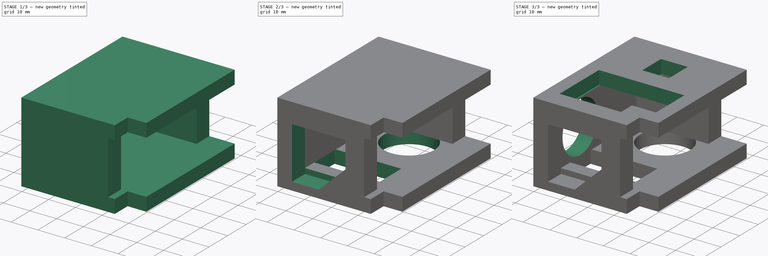
[diagram: build sequence overview — one tinted view per stage of 3, left to right]
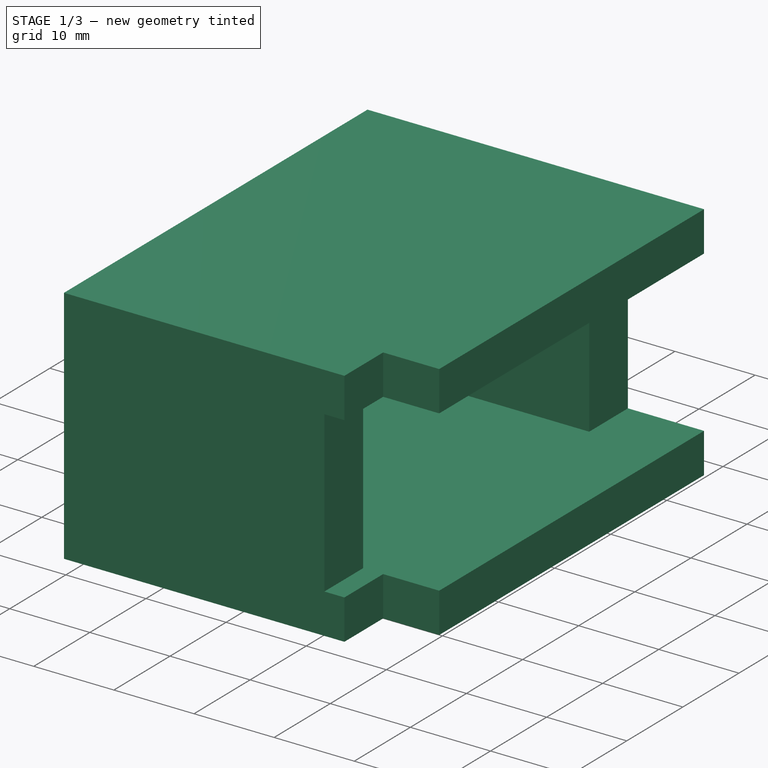
[diagram: stage 1 of 3 — iso view after this stage's code; geometry added in this stage tinted green]
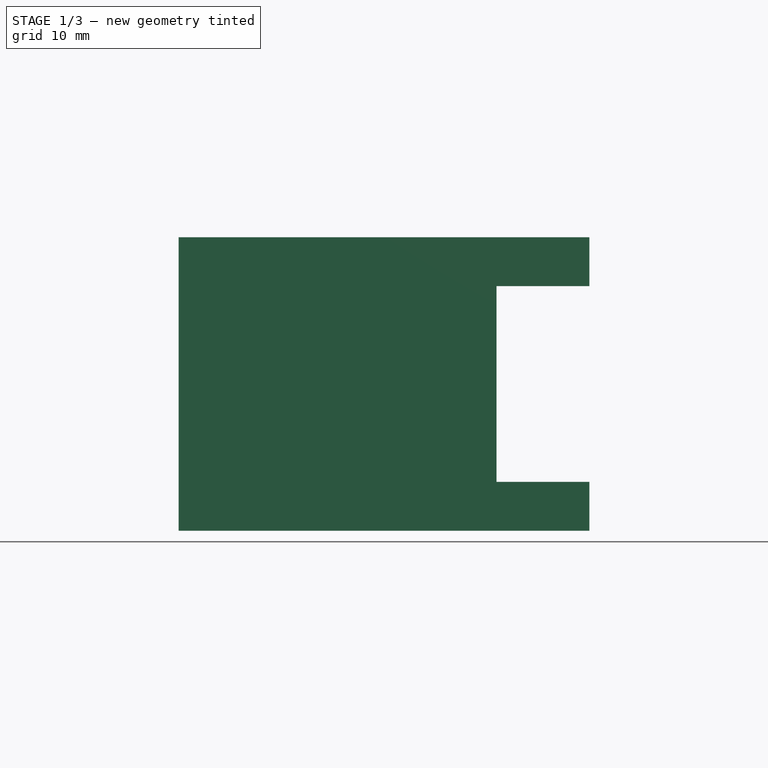
[diagram: stage 1 of 3 — front view after this stage's code; geometry added in this stage tinted green]
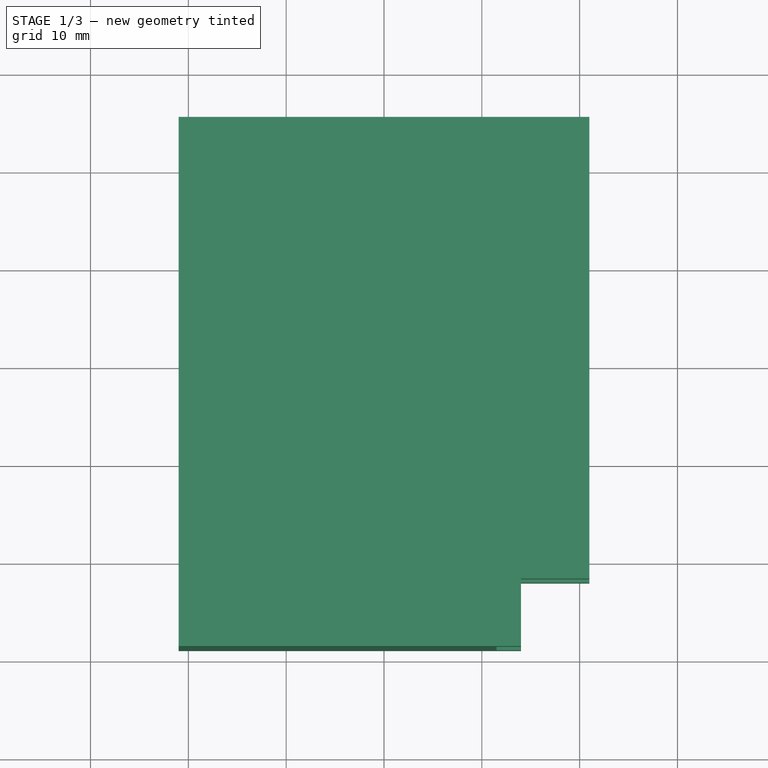
[diagram: stage 1 of 3 — top view after this stage's code; geometry added in this stage tinted green]
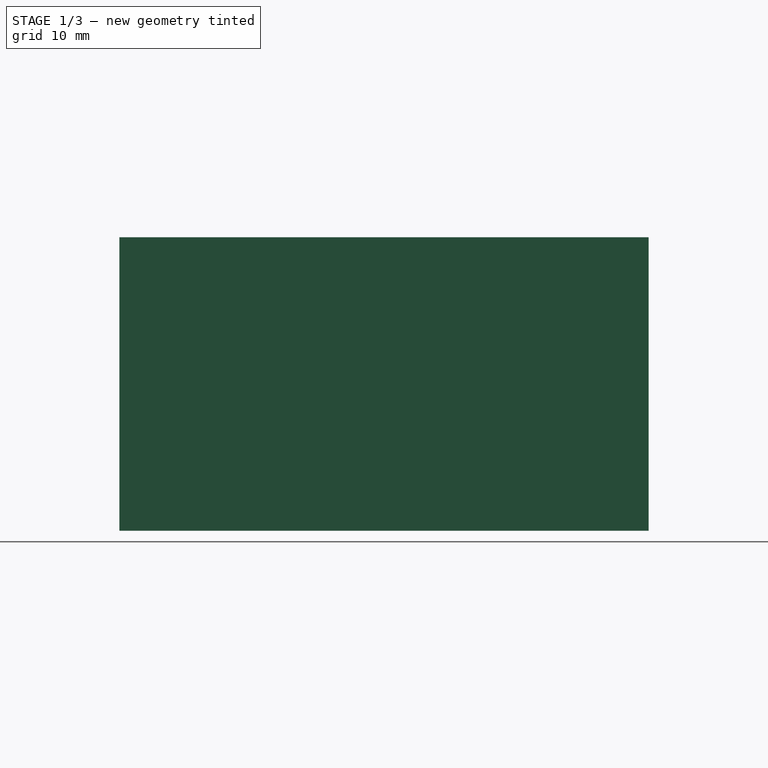
[diagram: stage 1 of 3 — right view after this stage's code; geometry added in this stage tinted green]
FCSTD DOCUMENT  (FreeCAD 0.20R29410 (Git))
Label: hip-male
License: All rights reserved
LicenseURL: http://en.wikipedia.org/wiki/All_rights_reserved
objects: Sketcher::SketchObject×7, PartDesign::Pocket×5, PartDesign::Pad×1, PartDesign::Body×1
note: 20 computed .brp shape members not serialized (recipe doc carries the construction recipe); baked Part::Feature solids carry a one-line shape summary decoded from their .brp

FEATURE [Sketcher::SketchObject] Sketch
  FullyConstrained = true
  MapMode = 5
  Support = -> [XY_Plane]
  sketch-geometry (7):
    g0: LineSegment StartX=-21 StartY=25.2 StartZ=0 EndX=-21 EndY=-28.9 EndZ=0
    g1: LineSegment StartX=-21 StartY=-28.9 StartZ=0 EndX=14 EndY=-28.9 EndZ=0
    g2: LineSegment StartX=14 StartY=-28.9 StartZ=0 EndX=14 EndY=-22 EndZ=0
    g3: LineSegment StartX=14 StartY=-22 StartZ=0 EndX=21 EndY=-22 EndZ=0
    g4: LineSegment StartX=21 StartY=-22 StartZ=0 EndX=21 EndY=25.2 EndZ=0
    g5: GeomPoint X=0 Y=-14.65 Z=0
    g6: LineSegment StartX=-21 StartY=25.2 StartZ=0 EndX=21 EndY=25.2 EndZ=0
  constraints (20):
    c: Vertical(g0)
    c: Coincident(g0,g1)
    c: Horizontal(g1)
    c: Coincident(g1,g2)
    c: Coincident(g2,g3)
    c: Horizontal(g3)
    c: Coincident(g3,g4)
    c: DistanceX(g1,g1) = 35
    c: DistanceX(g3,g3) = 7
    c: Perpendicular(g-1,g2)
    c: DistanceY(g4,g4) = 47.2
    c: DistanceY(g2,g2) = 6.9
    c: DistanceX(g0,g4) = 42
    c: DistanceY(g0,g5) = 14.25
    c: DistanceX(g0,g5) = 21
    c: DistanceY(g3,g-1) = 22
    c: DistanceX(g5,g-1) = 0
    c: Coincident(g0,g6)
    c: Coincident(g6,g4)
    c: Horizontal(g6)
FEATURE [PartDesign::Pad] Pad  label="MainPad"
  Direction = (0,0,1)
  Length = 30
  Length2 = 10
  Profile = -> Sketch
  ReferenceAxis = -> Sketch [N_Axis]
  Type = 0
FEATURE [Sketcher::SketchObject] Sketch001
  AttachmentOffset = pos=(0,0,5) rot=(0,0,1;0rad)
  FullyConstrained = false
  MapMode = 5
  Placement = pos=(0,0,5) rot=(0,0,1;0rad)
  Support = -> [XY_Plane]
  sketch-geometry (18):
    g0: LineSegment StartX=-15.5 StartY=18.3 StartZ=0 EndX=-15.5 EndY=-22 EndZ=0
    g1: LineSegment StartX=-15.5 StartY=-22 StartZ=0 EndX=11.5 EndY=-22 EndZ=0
    g2: LineSegment StartX=11.5 StartY=-22 StartZ=0 EndX=11.5 EndY=-28.9 EndZ=0
    g3: LineSegment StartX=11.5 StartY=-28.9 StartZ=0 EndX=14 EndY=-28.9 EndZ=0
    g4: LineSegment StartX=14 StartY=-28.9 StartZ=0 EndX=14 EndY=-22 EndZ=0
    g5: LineSegment StartX=14 StartY=-22 StartZ=0 EndX=21 EndY=-22 EndZ=0
    g6: LineSegment StartX=21 StartY=-22 StartZ=0 EndX=21 EndY=-18 EndZ=0
    g7: LineSegment StartX=21 StartY=-18 StartZ=0 EndX=27.5 EndY=-18 EndZ=0
    g8: LineSegment StartX=27.5 StartY=-18 StartZ=0 EndX=27.5 EndY=-12 EndZ=0
    g9: LineSegment StartX=27.5 StartY=-12 StartZ=0 EndX=21 EndY=-12 EndZ=0
    g10: LineSegment StartX=21 StartY=-12 StartZ=0 EndX=21 EndY=12.2 EndZ=0
    g11: LineSegment StartX=21 StartY=12.2 StartZ=0 EndX=21 EndY=12.2 EndZ=0
    g12: LineSegment StartX=21 StartY=12.2 StartZ=0 EndX=21 EndY=18.2 EndZ=0
    g13: LineSegment StartX=21 StartY=18.2 StartZ=0 EndX=21 EndY=18.2 EndZ=0
    g14: LineSegment StartX=21 StartY=18.2 StartZ=0 EndX=21 EndY=25.2 EndZ=0
    g15: LineSegment StartX=21 StartY=25.2 StartZ=0 EndX=11.5 EndY=25.2 EndZ=0
    g16: LineSegment StartX=11.5 StartY=25.2 StartZ=0 EndX=11.5 EndY=18.3 EndZ=0
    g17: LineSegment StartX=11.5 StartY=18.3 StartZ=0 EndX=-15.5 EndY=18.3 EndZ=0
  constraints (53):
    c: Coincident(g0,g1)
    c: Coincident(g1,g2)
    c: Coincident(g2,g3)
    c: Coincident(g3,g4)
    c: Coincident(g4,g5)
    c: Horizontal(g5)
    c: Coincident(g5,g6)
    c: Vertical(g6)
    c: Coincident(g6,g7)
    c: Horizontal(g7)
    c: Coincident(g7,g8)
    c: Coincident(g8,g9)
    c: Horizontal(g9)
    c: Coincident(g9,g10)
    c: Vertical(g10)
    c: Coincident(g10,g11)
    c: Horizontal(g11)
    c: Coincident(g11,g12)
    c: Coincident(g12,g13)
    c: Horizontal(g13)
    c: Coincident(g13,g14)
    c: Coincident(g14,g15)
    c: Coincident(g15,g16)
    c: Vertical(g16)
    c: Coincident(g16,g17)
    c: Coincident(g17,g0)
    c: Perpendicular(g-1,g0)
    c: Perpendicular(g-2,g1)
    c: Perpendicular(g-1,g2)
    c: Perpendicular(g-1,g4)
    c: Perpendicular(g-2,g3)
    c: Perpendicular(g-2,g15)
    c: Perpendicular(g-2,g17)
    c: Perpendicular(g-1,g12)
    c: Perpendicular(g-1,g8)
    c: DistanceY(g0,g0) = 40.3
    c: DistanceY(g2,g2) = 6.9
    c: DistanceX(g3,g3) = 2.5
    c: DistanceX(g5,g5) = 7
    c: DistanceX(g1,g1) = 27
    c: DistanceY(g4,g4) = 6.9
    c: DistanceX(g15,g15) = 9.5
    c: DistanceX(g17,g17) = 27
    c: DistanceY(g14,g14) = 7
    c: DistanceX(g9,g9) = 6.5
    c: DistanceX(g7,g7) = 6.5
    c: DistanceY(g8,g8) = 6
    c: DistanceY(g12,g12) = 6
    c: DistanceY(g6,g6) = 4
    c: DistanceX(g-1,g5) = 21
    c: DistanceX(g13,g14) = 0
    c: DistanceX(g12,g13) = 0
    c: DistanceY(g5,g-1) = 22
FEATURE [Sketcher::SketchObject] Sketch002  label="ServoSketch"
  FullyConstrained = false
  MapMode = 5
  Support = -> [XY_Plane]
  sketch-geometry (18):
    g0: LineSegment StartX=-11.7659 StartY=18.631 StartZ=0 EndX=-11.7659 EndY=-21.669 EndZ=0
    g1: LineSegment StartX=-11.7659 StartY=-21.669 StartZ=0 EndX=15.2341 EndY=-21.669 EndZ=0
    g2: LineSegment StartX=15.2341 StartY=-21.669 StartZ=0 EndX=15.2341 EndY=-28.519 EndZ=0
    g3: LineSegment StartX=15.2341 StartY=-28.519 StartZ=0 EndX=17.7341 EndY=-28.519 EndZ=0
    g4: LineSegment StartX=17.7341 StartY=-28.519 StartZ=0 EndX=17.7341 EndY=-21.669 EndZ=0
    g5: LineSegment StartX=17.7341 StartY=-21.669 StartZ=0 EndX=24.7341 EndY=-21.669 EndZ=0
    g6: LineSegment StartX=24.7341 StartY=-21.669 StartZ=0 EndX=24.7341 EndY=-17.669 EndZ=0
    g7: LineSegment StartX=24.7341 StartY=-17.669 StartZ=0 EndX=31.2341 EndY=-17.669 EndZ=0
    g8: LineSegment StartX=31.2341 StartY=-17.669 StartZ=0 EndX=31.2341 EndY=-11.669 EndZ=0
    g9: LineSegment StartX=31.2341 StartY=-11.669 StartZ=0 EndX=24.7341 EndY=-11.669 EndZ=0
    g10: LineSegment StartX=24.7341 StartY=-11.669 StartZ=0 EndX=24.7341 EndY=12.631 EndZ=0
    g11: LineSegment StartX=24.7341 StartY=12.631 StartZ=0 EndX=22.7341 EndY=12.631 EndZ=0
    g12: LineSegment StartX=22.7341 StartY=12.631 StartZ=0 EndX=22.7341 EndY=18.631 EndZ=0
    g13: LineSegment StartX=22.7341 StartY=18.631 StartZ=0 EndX=17.7341 EndY=18.631 EndZ=0
    g14: LineSegment StartX=17.7341 StartY=18.631 StartZ=0 EndX=17.7341 EndY=25.481 EndZ=0
    g15: LineSegment StartX=17.7341 StartY=25.481 StartZ=0 EndX=15.2341 EndY=25.481 EndZ=0
    g16: LineSegment StartX=15.2341 StartY=25.481 StartZ=0 EndX=15.2341 EndY=18.631 EndZ=0
    g17: LineSegment StartX=15.2341 StartY=18.631 StartZ=0 EndX=-11.7659 EndY=18.631 EndZ=0
  constraints (52):
    c: Coincident(g0,g1)
    c: Coincident(g1,g2)
    c: Coincident(g2,g3)
    c: Coincident(g3,g4)
    c: Coincident(g4,g5)
    c: Horizontal(g5)
    c: Coincident(g5,g6)
    c: Vertical(g6)
    c: Coincident(g6,g7)
    c: Horizontal(g7)
    c: Coincident(g7,g8)
    c: Coincident(g8,g9)
    c: Horizontal(g9)
    c: Coincident(g9,g10)
    c: Vertical(g10)
    c: Coincident(g10,g11)
    c: Horizontal(g11)
    c: Coincident(g11,g12)
    c: Coincident(g12,g13)
    c: Horizontal(g13)
    c: Coincident(g13,g14)
    c: Coincident(g14,g15)
    c: Coincident(g15,g16)
    c: Vertical(g16)
    c: Coincident(g16,g17)
    c: Coincident(g17,g0)
    c: Perpendicular(g-1,g0)
    c: Perpendicular(g-2,g1)
    c: Perpendicular(g-1,g2)
    c: Perpendicular(g-1,g4)
    c: Perpendicular(g-2,g3)
    c: Perpendicular(g-2,g15)
    c: Perpendicular(g-2,g17)
    c: Perpendicular(g-1,g12)
    c: Perpendicular(g-1,g8)
    c: DistanceY(g0,g0) = 40.3
    c: DistanceY(g2,g2) = 6.85
    c: DistanceX(g3,g3) = 2.5
    c: DistanceX(g5,g5) = 7
    c: DistanceX(g1,g1) = 27
    c: DistanceY(g4,g4) = 6.85
    c: DistanceX(g13,g13) = 5
    c: DistanceX(g11,g11) = 2
    c: DistanceX(g15,g15) = 2.5
    c: DistanceX(g17,g17) = 27
    c: DistanceY(g16,g16) = 6.85
    c: DistanceY(g14,g14) = 6.85
    c: DistanceX(g9,g9) = 6.5
    c: DistanceX(g7,g7) = 6.5
    c: DistanceY(g8,g8) = 6
    c: DistanceY(g12,g12) = 6
    c: DistanceY(g6,g6) = 4
FEATURE [PartDesign::Pocket] Pocket  label="ServoPocket"
  BaseFeature = -> Pad
  Direction = (0,0,-1)
  Length = 20
  Length2 = 5
  Profile = -> Sketch001
  ReferenceAxis = -> Sketch001 [N_Axis]
  Reversed = true
  Type = 0
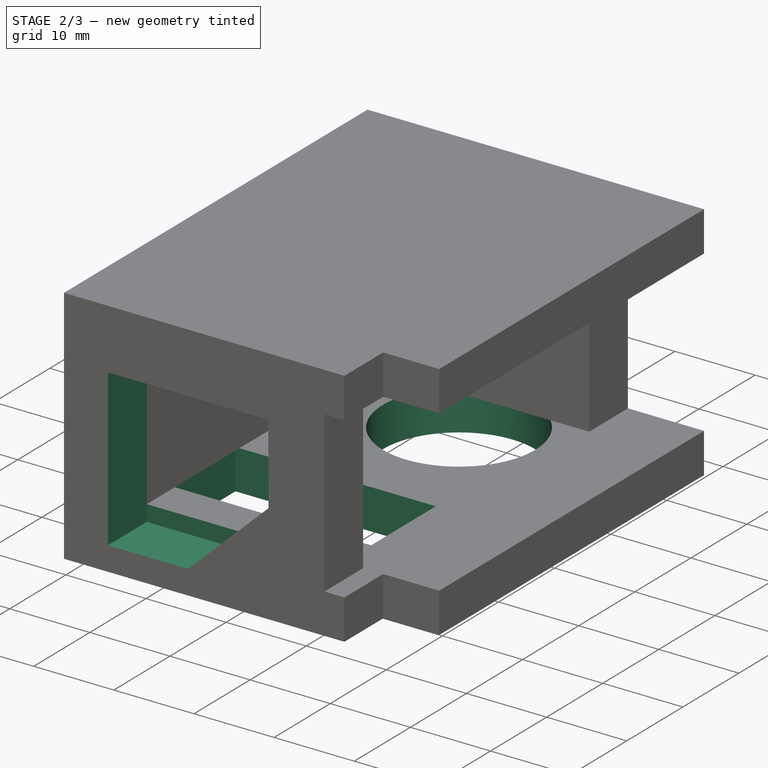
[diagram: stage 2 of 3 — iso view after this stage's code; geometry added in this stage tinted green]
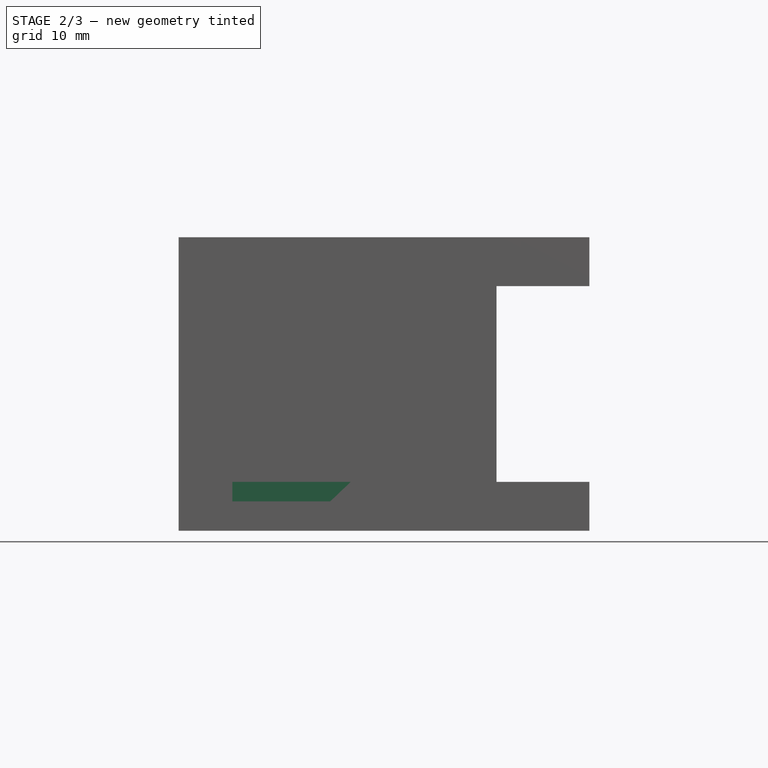
[diagram: stage 2 of 3 — front view after this stage's code; geometry added in this stage tinted green]
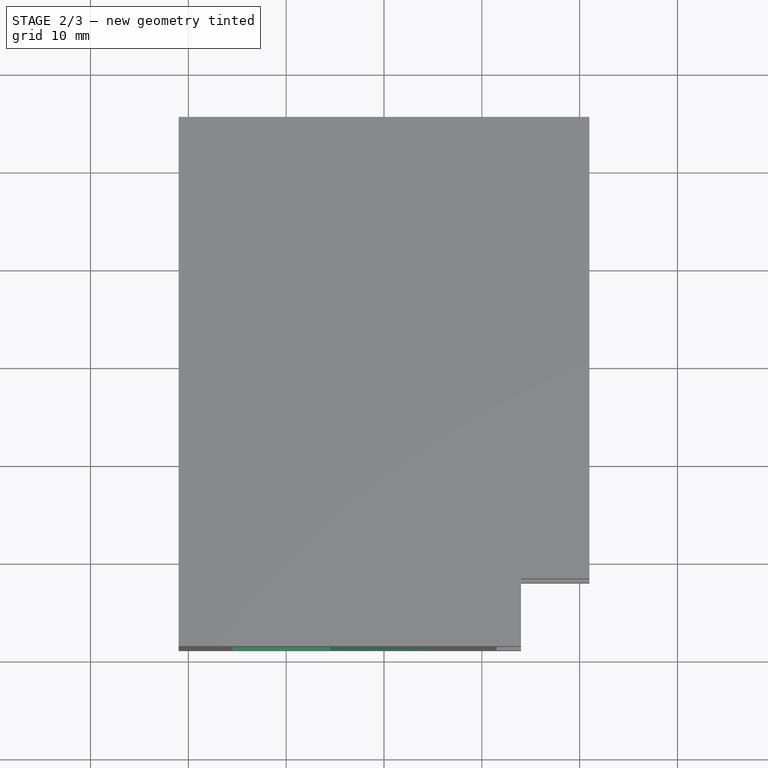
[diagram: stage 2 of 3 — top view after this stage's code; geometry added in this stage tinted green]
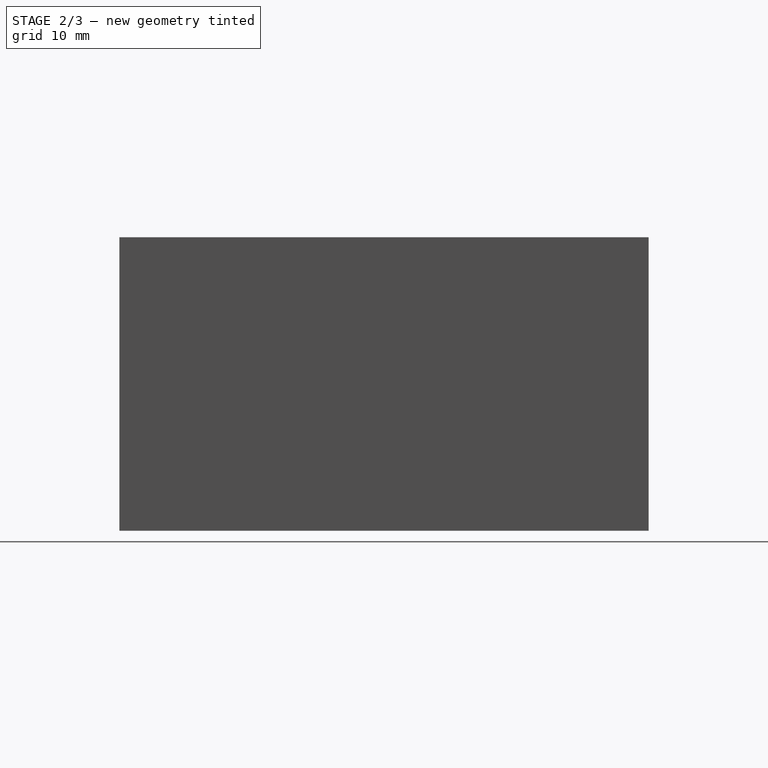
[diagram: stage 2 of 3 — right view after this stage's code; geometry added in this stage tinted green]
FEATURE [Sketcher::SketchObject] Sketch003
  AttachmentOffset = pos=(-15.5,3,28.9) rot=(0,0,1;0rad)
  FullyConstrained = false
  MapMode = 5
  Placement = pos=(-15.5,-28.9,3) rot=(1,0,0;1.5708rad)
  Support = -> [XZ_Plane]
  sketch-geometry (5):
    g0: LineSegment StartX=20.0309 StartY=9.53584 StartZ=0 EndX=10 EndY=0 EndZ=0
    g1: LineSegment StartX=10 StartY=0 StartZ=0 EndX=0 EndY=0 EndZ=0
    g2: LineSegment StartX=0 StartY=0 StartZ=0 EndX=0 EndY=19.5 EndZ=0
    g3: LineSegment StartX=0 StartY=19.5 StartZ=0 EndX=20 EndY=19.5 EndZ=0
    g4: LineSegment StartX=20 StartY=19.5 StartZ=0 EndX=20.0309 EndY=9.53584 EndZ=0
  constraints (13):
    c: Coincident(g0,g1)
    c: Horizontal(g1)
    c: Coincident(g1,g2)
    c: Vertical(g2)
    c: Coincident(g2,g3)
    c: DistanceX(g3,g3) = 20
    c: Perpendicular(g-2,g3)
    c: DistanceX(g1,g1) = 10
    c: DistanceY(g2,g2) = 19.5
    c: DistanceY(g-1,g0) = 0
    c: DistanceX(g2,g-1) = 0
    c: Coincident(g3,g4)
    c: Coincident(g4,g0)
FEATURE [PartDesign::Pocket] Pocket001  label="FrontPocket"
  BaseFeature = -> Pocket
  Direction = (0,1,2e-16)
  Length = 6.9
  Length2 = 5
  Profile = -> Sketch003
  ReferenceAxis = -> Sketch003 [N_Axis]
  Type = 0
FEATURE [Sketcher::SketchObject] Sketch004
  AttachmentOffset = pos=(0,0,5) rot=(0,0,1;0rad)
  FullyConstrained = false
  MapMode = 5
  Placement = pos=(0,0,5) rot=(0,0,1;0rad)
  Support = -> [XY_Plane]
  sketch-geometry (8):
    g0: LineSegment StartX=-16 StartY=-5.475 StartZ=0 EndX=-16 EndY=-17 EndZ=0
    g1: LineSegment StartX=-16 StartY=-17 StartZ=0 EndX=9 EndY=-17 EndZ=0
    g2: LineSegment StartX=9 StartY=-5.475 StartZ=0 EndX=-16 EndY=-5.475 EndZ=0
    g3: LineSegment StartX=9 StartY=-17 StartZ=0 EndX=9 EndY=-16.1143 EndZ=0
    g4: LineSegment StartX=9 StartY=-5.475 StartZ=0 EndX=9 EndY=-16.1143 EndZ=0
    g5: GeomPoint X=0 Y=11.525 Z=0
    g6: GeomPoint X=0 Y=11.525 Z=0
    g7: Circle CenterX=0 CenterY=11.525 CenterZ=0 NormalX=0 NormalY=0 NormalZ=1 AngleXU=0 Radius=9.5
  constraints (19):
    c: Coincident(g0,g1)
    c: Coincident(g2,g0)
    c: Perpendicular(g-1,g0)
    c: Perpendicular(g-2,g1)
    c: Perpendicular(g-2,g2)
    c: DistanceX(g1,g1) = 25
    c: DistanceX(g2,g2) = 25
    c: Coincident(g1,g3)
    c: Vertical(g3)
    c: Coincident(g2,g4)
    c: Coincident(g4,g3)
    c: DistanceX(g-1,g2) = 9
    c: DistanceY(g1,g-1) = 17
    c: PointOnObject(g5,g-2)
    c: DistanceY(g-1,g5) = 11.525
    c: Coincident(g6,g5)
    c: Coincident(g7,g5)
    c: Radius(g7) = 9.5
    c: DistanceY(g2,g7) = 17
FEATURE [PartDesign::Pocket] Pocket002  label="UnderServoPocket"
  BaseFeature = -> Pocket001
  Direction = (0,0,-1)
  Length = 5
  Length2 = 5
  Profile = -> Sketch004
  ReferenceAxis = -> Sketch004 [N_Axis]
  Type = 0
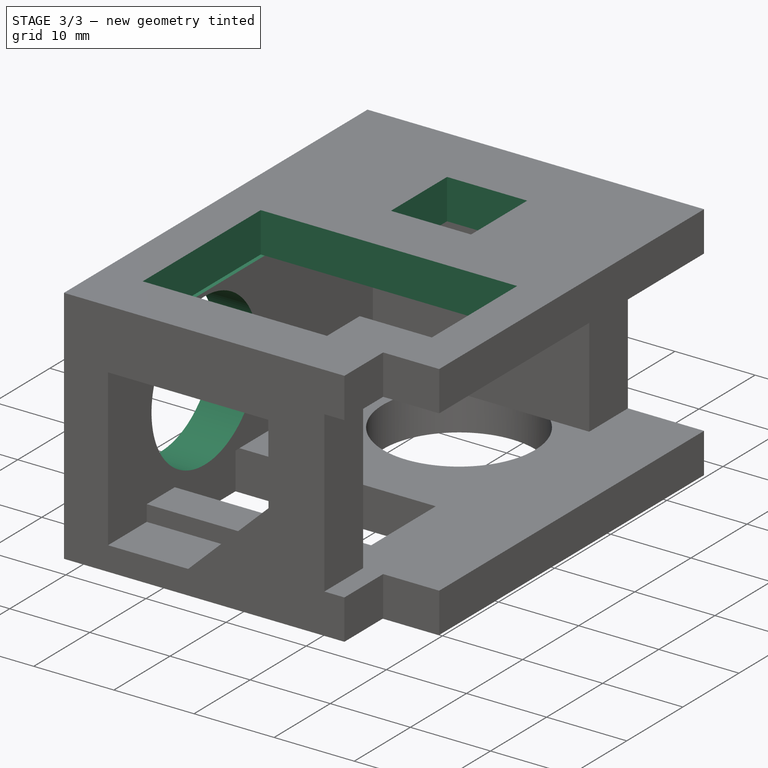
[diagram: stage 3 of 3 — iso view after this stage's code; geometry added in this stage tinted green]
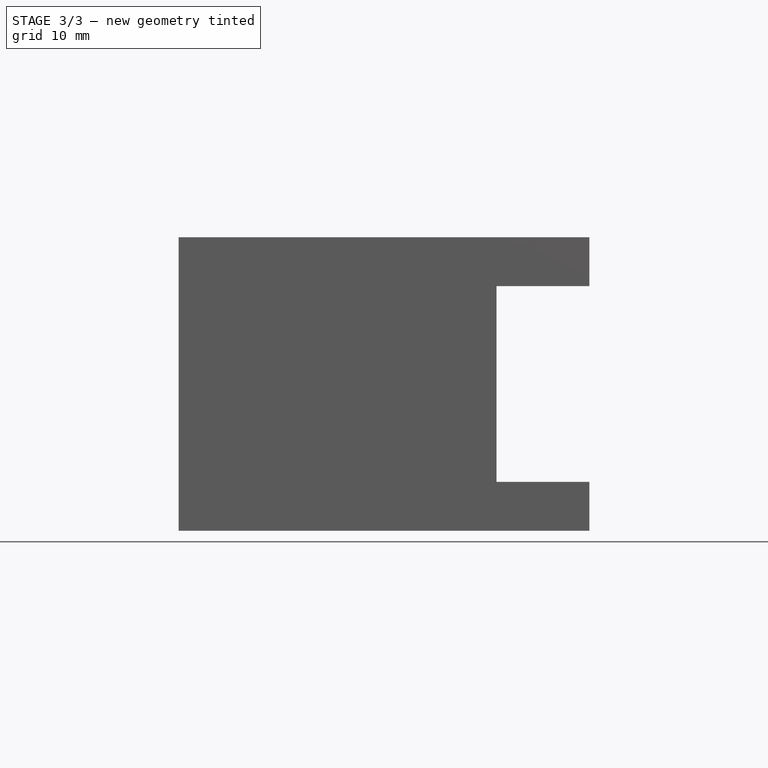
[diagram: stage 3 of 3 — front view after this stage's code; geometry added in this stage tinted green]
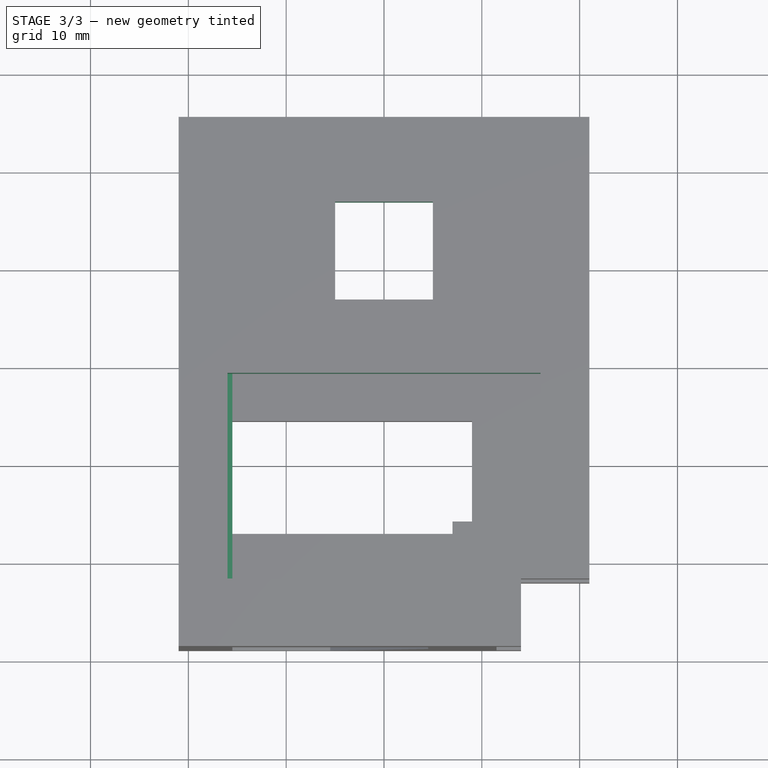
[diagram: stage 3 of 3 — top view after this stage's code; geometry added in this stage tinted green]
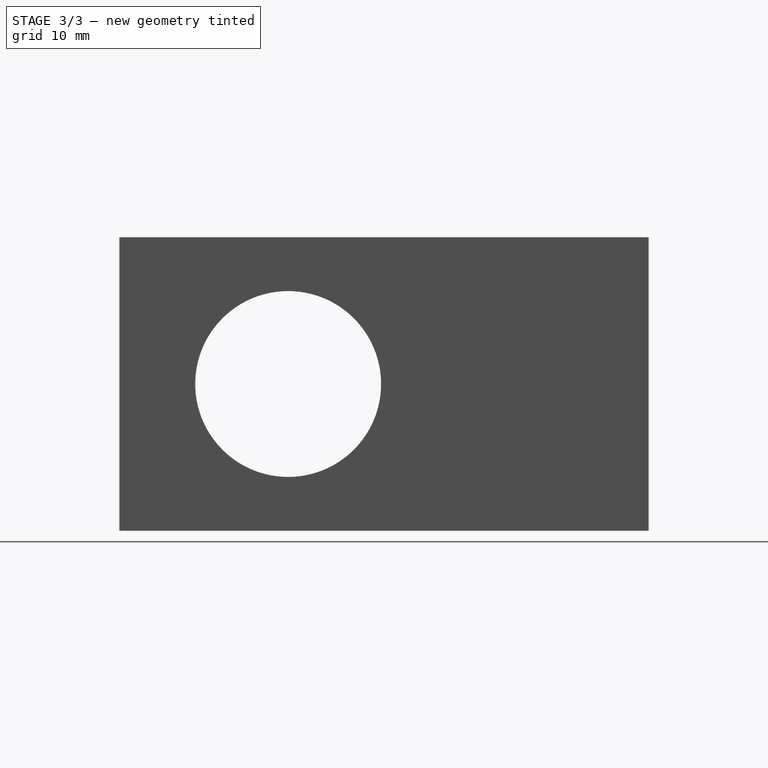
[diagram: stage 3 of 3 — right view after this stage's code; geometry added in this stage tinted green]
FEATURE [Sketcher::SketchObject] Sketch005
  AttachmentOffset = pos=(0,0,30) rot=(0,0,1;0rad)
  FullyConstrained = false
  MapMode = 5
  Placement = pos=(0,0,30) rot=(0,0,1;0rad)
  Support = -> [XY_Plane]
  sketch-geometry (12):
    g0: LineSegment StartX=-16 StartY=-0.975 StartZ=0 EndX=-16 EndY=-22 EndZ=0
    g1: LineSegment StartX=-16 StartY=-22 StartZ=0 EndX=7 EndY=-22 EndZ=0
    g2: LineSegment StartX=16 StartY=-0.975 StartZ=0 EndX=-16 EndY=-0.975 EndZ=0
    g3: LineSegment StartX=7 StartY=-22 StartZ=0 EndX=7 EndY=-16.1754 EndZ=0
    g4: LineSegment StartX=7 StartY=-16.1754 StartZ=0 EndX=16 EndY=-16.1754 EndZ=0
    g5: LineSegment StartX=16 StartY=-16.1754 StartZ=0 EndX=16 EndY=-0.975 EndZ=0
    g6: GeomPoint X=0 Y=11.525 Z=0
    g7: LineSegment StartX=-5 StartY=16.525 StartZ=0 EndX=-5 EndY=6.525 EndZ=0
    g8: LineSegment StartX=-5 StartY=6.525 StartZ=0 EndX=5 EndY=6.525 EndZ=0
    g9: LineSegment StartX=5 StartY=6.525 StartZ=0 EndX=5 EndY=16.525 EndZ=0
    g10: LineSegment StartX=5 StartY=16.525 StartZ=0 EndX=-5 EndY=16.525 EndZ=0
    g11: GeomPoint X=0 Y=11.525 Z=0
  constraints (30):
    c: Coincident(g0,g1)
    c: Coincident(g2,g0)
    c: Perpendicular(g-1,g0)
    c: Perpendicular(g-2,g1)
    c: Perpendicular(g-2,g2)
    c: DistanceX(g1,g1) = 23
    c: DistanceX(g2,g2) = 32
    c: Coincident(g1,g3)
    c: Vertical(g3)
    c: Coincident(g3,g4)
    c: Coincident(g4,g5)
    c: Coincident(g5,g2)
    c: DistanceX(g4,g4) = 9
    c: Perpendicular(g-2,g4)
    c: DistanceX(g-1,g2) = 16
    c: PointOnObject(g6,g-2)
    c: DistanceY(g-1,g6) = 11.525
    c: Coincident(g7,g8)
    c: Coincident(g8,g9)
    c: Coincident(g9,g10)
    c: Coincident(g10,g7)
    c: Horizontal(g8)
    c: Horizontal(g10)
    c: Vertical(g7)
    c: Vertical(g9)
    c: Symmetric(g8,g7,g11)
    c: Coincident(g11,g6)
    c: DistanceX(g8,g8) = 10
    c: DistanceY(g9,g9) = 10
    c: DistanceY(g2,g6) = 12.5
FEATURE [PartDesign::Pocket] Pocket003  label="OverServoPocket"
  BaseFeature = -> Pocket002
  Direction = (0,0,-1)
  Length = 5
  Length2 = 5
  Profile = -> Sketch005
  ReferenceAxis = -> Sketch005 [N_Axis]
  Type = 0
FEATURE [Sketcher::SketchObject] Sketch006
  AttachmentOffset = pos=(-22,0,0) rot=(0,1,0;1.5708rad)
  FullyConstrained = true
  MapMode = 5
  Placement = pos=(-22,0,0) rot=(0.57735,0.57735,0.57735;2.0944rad)
  Support = -> [XZ_Plane]
  sketch-geometry (1):
    g0: Circle CenterX=-11.65 CenterY=15 CenterZ=0 NormalX=0 NormalY=0 NormalZ=1 AngleXU=0 Radius=9.5
  constraints (3):
    c: Diameter(g0) = 19
    c: DistanceY(g-1,g0) = 15
    c: DistanceX(g0,g-1) = 11.65
FEATURE [PartDesign::Pocket] Pocket004  label="BearingPocket"
  BaseFeature = -> Pocket003
  Direction = (-1,0,0)
  Length = 56
  Length2 = 5
  Profile = -> Sketch006
  ReferenceAxis = -> Sketch006 [N_Axis]
  Reversed = true
  Type = 0
FEATURE [PartDesign::Body] Body  label="MainBody"
  Group = -> [Sketch,Pad,Sketch001,Sketch002,Pocket,Sketch003,Pocket001,Sketch004,Pocket002,Sketch005,Pocket003,Sketch006,Pocket004]
  Origin = -> Origin
  Tip = -> Pocket004
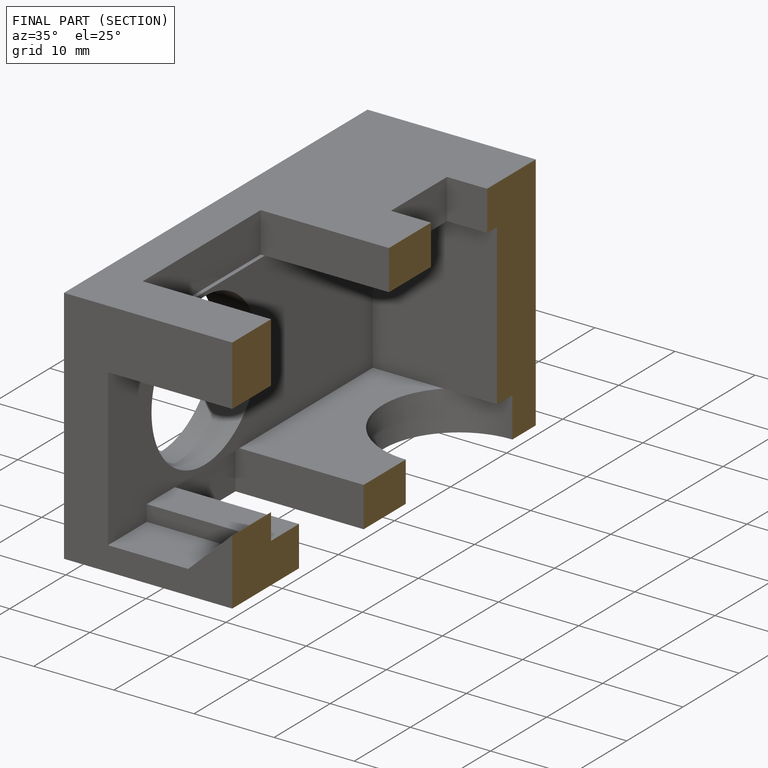
[diagram: finished part — half-section view (interior)]
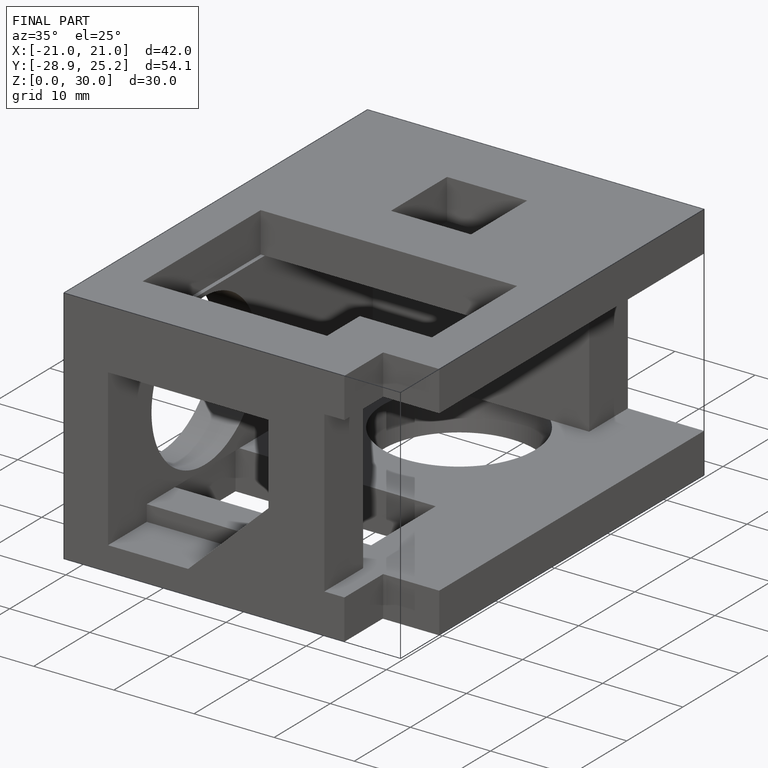
[diagram: finished part — iso view with bounding-box wireframe]
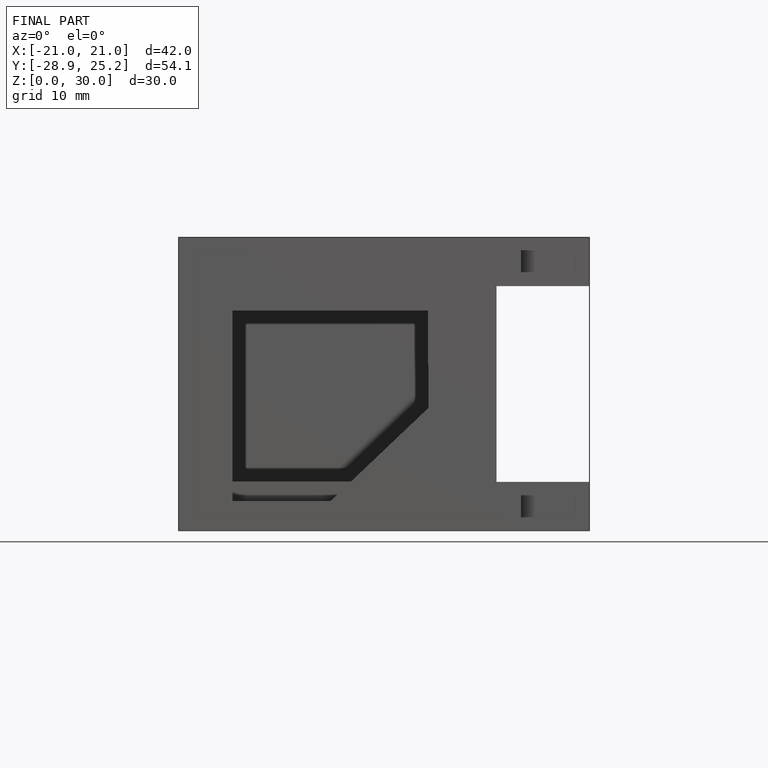
[diagram: finished part — front view with bounding-box wireframe]
